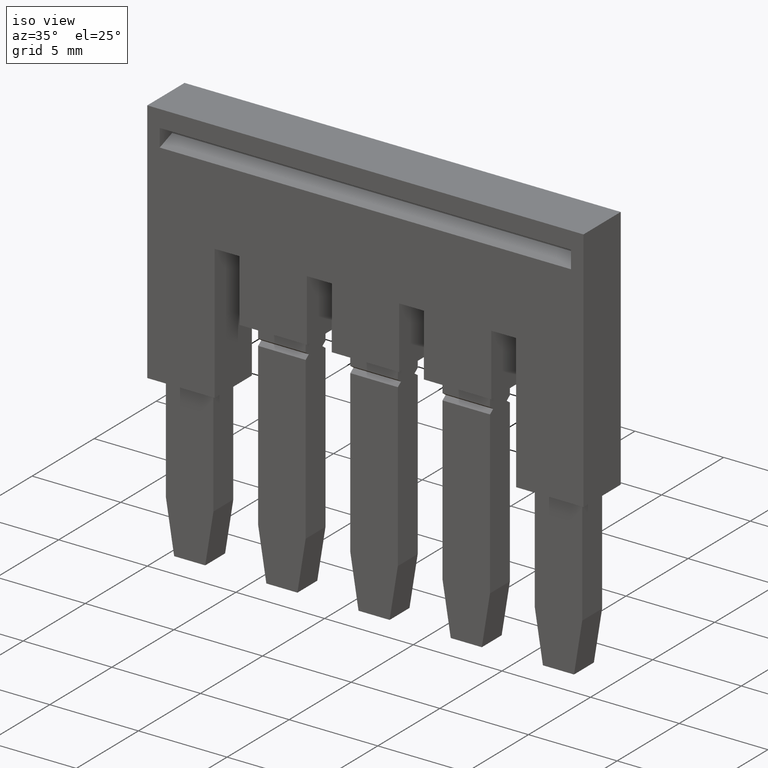
[diagram: clean part render]
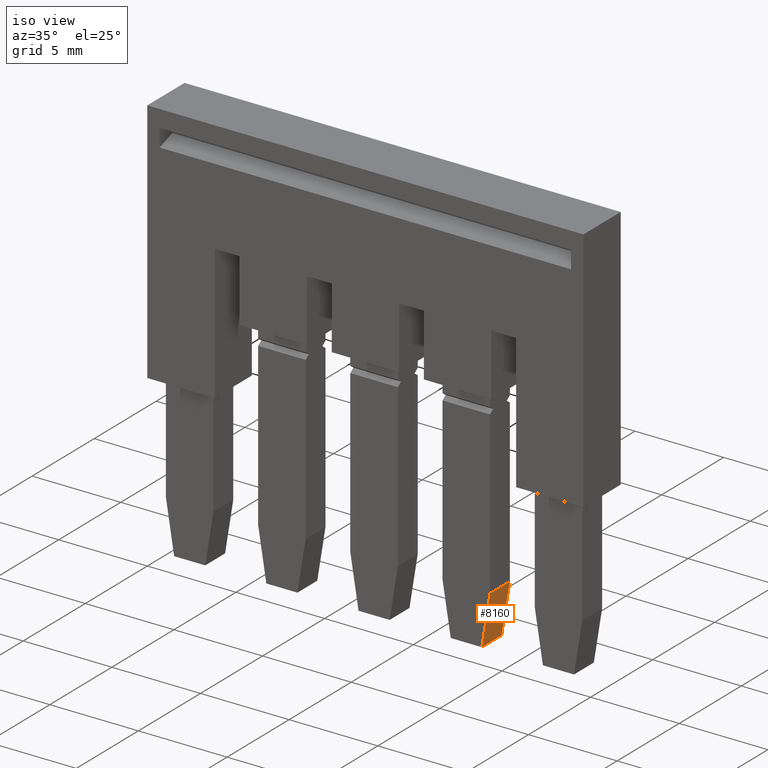
[diagram: same view with one face highlighted and labeled with its STEP entity id]
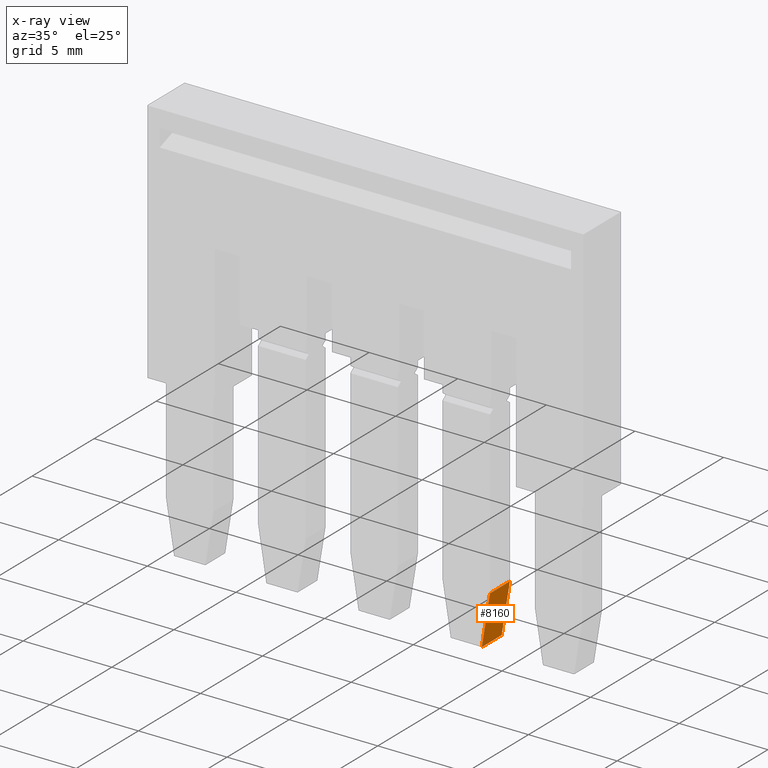
[diagram: x-ray of the same camera — body ghosted, the highlighted face saturated]
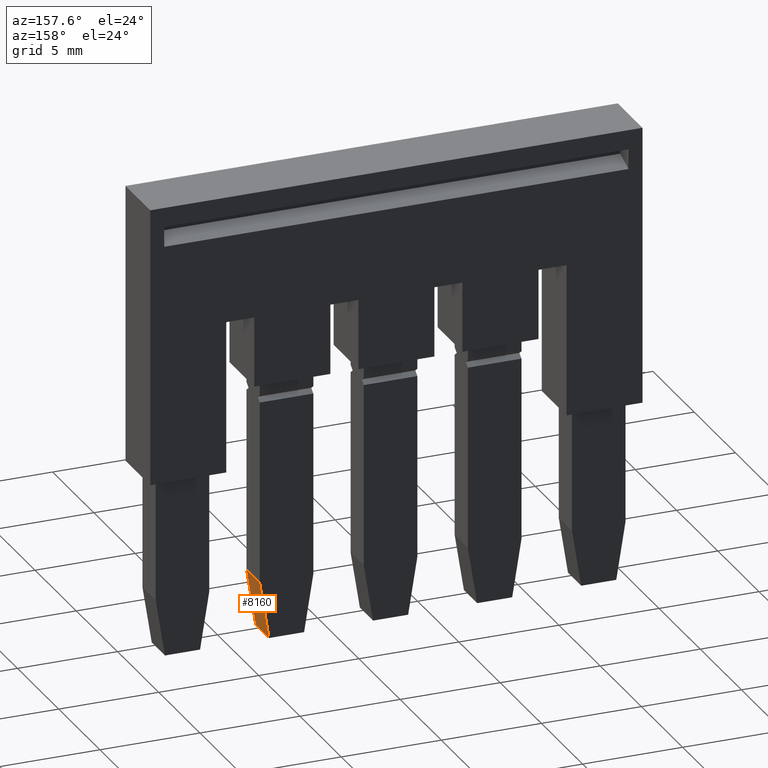
[diagram: same view with one face highlighted and labeled with its STEP entity id]
A machine part, iso view. The second image highlights one B-rep face of the part: STEP entity #8160.
The next image is the same camera in x-ray: the body ghosted, the highlighted face saturated — about 0% of this face is hidden behind the body in this view.
A second angle (auxiliary view) of the same face is appended — the face is thin or edge-on in the first view.
In plain terms, the highlighted planar face has unit normal (-0.9872, 0, 0.1594).
Its self-contained STEP definition (entity closure, byte-faithful):
#5810=CARTESIAN_POINT('',(3.30716722168535,-28.980742062475,
52.6000000009616));
#5820=VERTEX_POINT('',#5810);
#5850=CARTESIAN_POINT('',(3.30716722168536,-12.305124,55.2919725831152))
;
#5860=DIRECTION('',(0.,-0.987219178105449,-0.159368423411924));
#5870=VECTOR('',#5860,1.);
#5880=LINE('',#5850,#5870);
#5890=CARTESIAN_POINT('',(3.30716722168535,-31.8499999999978,
52.1368109503369));
#5900=VERTEX_POINT('',#5890);
#5910=EDGE_CURVE('',#5820,#5900,#5880,.T.);
#6910=CARTESIAN_POINT('',(4.90716722169511,-12.305124,55.2919725831152))
;
#6920=DIRECTION('',(0.,-0.987219178105449,-0.159368423411924));
#6930=VECTOR('',#6920,1.);
#6940=LINE('',#6910,#6930);
#6950=CARTESIAN_POINT('',(4.90716722169511,-28.980742062475,
52.6000000009616));
#6960=VERTEX_POINT('',#6950);
#6970=CARTESIAN_POINT('',(4.90716722169511,-31.8499999999978,
52.1368109503369));
#6980=VERTEX_POINT('',#6970);
#6990=EDGE_CURVE('',#6960,#6980,#6940,.T.);
#7840=CARTESIAN_POINT('',(5.60716722168535,-28.9807420624751,
52.6000000009616));
#7850=DIRECTION('',(1.,-5.12734571802744E-15,-2.15392493197045E-16));
#7860=VECTOR('',#7850,1.);
#7870=LINE('',#7840,#7860);
#7880=EDGE_CURVE('',#5820,#6960,#7870,.T.);
#8000=CARTESIAN_POINT('',(3.47716482167446,-29.0736606429214,
52.5850000009618));
#8010=DIRECTION('',(6.04497403265841E-16,0.159368423411924,
-0.987219178105449));
#8020=DIRECTION('',(9.75850148043503E-17,-0.987219178105449,
-0.159368423411924));
#8030=AXIS2_PLACEMENT_3D('',#8000,#8010,#8020);
#8040=PLANE('',#8030);
#8050=ORIENTED_EDGE('',*,*,#5910,.T.);
#8060=ORIENTED_EDGE('',*,*,#7880,.F.);
#8070=ORIENTED_EDGE('',*,*,#6990,.F.);
#8080=CARTESIAN_POINT('',(5.60716722168535,-31.8499999999978,
52.1368109503369));
#8090=DIRECTION('',(1.,1.09710325223504E-26,6.12323399579481E-16));
#8100=VECTOR('',#8090,1.);
#8110=LINE('',#8080,#8100);
#8120=EDGE_CURVE('',#5900,#6980,#8110,.T.);
#8130=ORIENTED_EDGE('',*,*,#8120,.T.);
#8140=EDGE_LOOP('',(#8130,#8070,#8060,#8050));
#8150=FACE_OUTER_BOUND('',#8140,.T.);
#8160=ADVANCED_FACE('',(#8150),#8040,.F.);